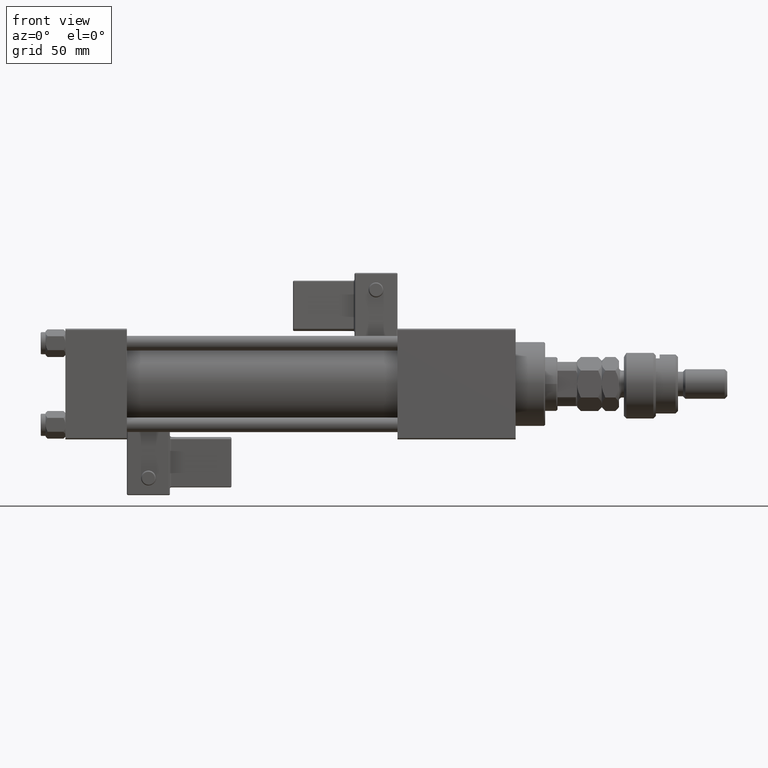
[diagram: clean part render]
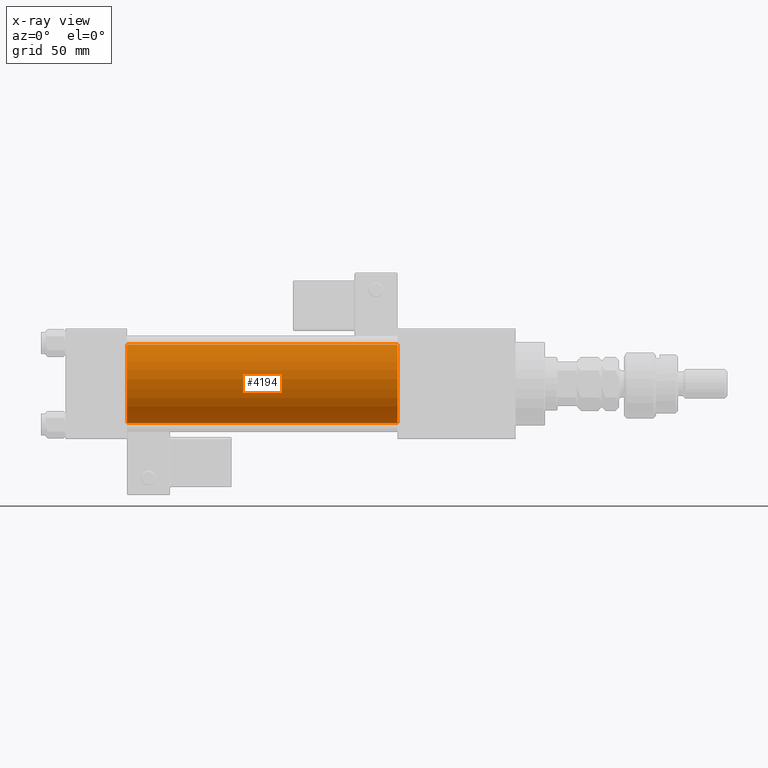
[diagram: x-ray — body ghosted, one internal face saturated and labeled with its STEP entity id]
A machine part, front view, then the same camera in x-ray: the body is ghosted and one INTERNAL B-rep face — a face not visible from any outside direction — is saturated and labeled: STEP entity #4194.
In plain terms, the highlighted cylindrical surface (partial cylindrical patch) has radius 16 mm, axis along (-1, -0, -0).
Its self-contained STEP definition (entity closure, byte-faithful):
#1651 = CARTESIAN_POINT ( 'NONE',  ( 135.0000000000000000, -2.602085213965210642E-15, 0.000000000000000000 ) ) ;
#1932 = CARTESIAN_POINT ( 'NONE',  ( 25.00000000000000000, -2.602085213965210642E-15, 16.00000000000000000 ) ) ;
#2149 = CARTESIAN_POINT ( 'NONE',  ( 25.00000000000000000, -2.602085213965210642E-15, 0.000000000000000000 ) ) ;
#3058 = LINE ( 'NONE', #54338, #14811 ) ;
#4194 = ADVANCED_FACE ( 'NONE', ( #51430 ), #43841, .F. ) ;
#5158 = CARTESIAN_POINT ( 'NONE',  ( 135.0000000000000000, -2.602085213965210642E-15, 0.000000000000000000 ) ) ;
#5445 = DIRECTION ( 'NONE',  ( 0.000000000000000000, 0.000000000000000000, 1.000000000000000000 ) ) ;
#5822 = AXIS2_PLACEMENT_3D ( 'NONE', #1651, #35549, #27133 ) ;
#6703 = CIRCLE ( 'NONE', #5822, 16.00000000000000000 ) ;
#9644 = DIRECTION ( 'NONE',  ( -1.000000000000000000, -0.000000000000000000, -0.000000000000000000 ) ) ;
#9722 = ORIENTED_EDGE ( 'NONE', *, *, #10913, .T. ) ;
#10913 = EDGE_CURVE ( 'NONE', #42615, #52602, #3058, .T. ) ;
#14321 = EDGE_CURVE ( 'NONE', #22014, #42615, #6703, .T. ) ;
#14811 = VECTOR ( 'NONE', #54901, 1000.000000000000000 ) ;
#15366 = VECTOR ( 'NONE', #34241, 1000.000000000000000 ) ;
#19238 = DIRECTION ( 'NONE',  ( 1.000000000000000000, 0.000000000000000000, 0.000000000000000000 ) ) ;
#19624 = AXIS2_PLACEMENT_3D ( 'NONE', #5158, #9644, #5445 ) ;
#20247 = ORIENTED_EDGE ( 'NONE', *, *, #50293, .F. ) ;
#21081 = VERTEX_POINT ( 'NONE', #1932 ) ;
#21752 = CARTESIAN_POINT ( 'NONE',  ( 135.0000000000000000, -6.426503353294456087E-16, -16.00000000000000000 ) ) ;
#22014 = VERTEX_POINT ( 'NONE', #46387 ) ;
#22760 = ORIENTED_EDGE ( 'NONE', *, *, #14321, .T. ) ;
#24356 = AXIS2_PLACEMENT_3D ( 'NONE', #2149, #19238, #36335 ) ;
#26086 = LINE ( 'NONE', #43189, #15366 ) ;
#27133 = DIRECTION ( 'NONE',  ( 0.000000000000000000, 0.000000000000000000, -1.000000000000000000 ) ) ;
#28425 = ORIENTED_EDGE ( 'NONE', *, *, #51962, .F. ) ;
#34241 = DIRECTION ( 'NONE',  ( -1.000000000000000000, -0.000000000000000000, -0.000000000000000000 ) ) ;
#35549 = DIRECTION ( 'NONE',  ( 1.000000000000000000, 0.000000000000000000, 0.000000000000000000 ) ) ;
#35743 = EDGE_LOOP ( 'NONE', ( #22760, #9722, #28425, #20247 ) ) ;
#36335 = DIRECTION ( 'NONE',  ( 0.000000000000000000, 0.000000000000000000, -1.000000000000000000 ) ) ;
#41376 = CIRCLE ( 'NONE', #24356, 16.00000000000000000 ) ;
#42615 = VERTEX_POINT ( 'NONE', #21752 ) ;
#43189 = CARTESIAN_POINT ( 'NONE',  ( 135.0000000000000000, -2.602085213965210642E-15, 16.00000000000000000 ) ) ;
#43841 = CYLINDRICAL_SURFACE ( 'NONE', #19624, 16.00000000000000000 ) ;
#46387 = CARTESIAN_POINT ( 'NONE',  ( 135.0000000000000000, -2.602085213965210642E-15, 16.00000000000000000 ) ) ;
#50293 = EDGE_CURVE ( 'NONE', #22014, #21081, #26086, .T. ) ;
#51430 = FACE_OUTER_BOUND ( 'NONE', #35743, .T. ) ;
#51962 = EDGE_CURVE ( 'NONE', #21081, #52602, #41376, .T. ) ;
#52602 = VERTEX_POINT ( 'NONE', #53781 ) ;
#53781 = CARTESIAN_POINT ( 'NONE',  ( 25.00000000000000000, -6.426503353294456087E-16, -16.00000000000000000 ) ) ;
#54338 = CARTESIAN_POINT ( 'NONE',  ( 135.0000000000000000, -6.426503353294456087E-16, -16.00000000000000000 ) ) ;
#54901 = DIRECTION ( 'NONE',  ( -1.000000000000000000, -0.000000000000000000, -0.000000000000000000 ) ) ;